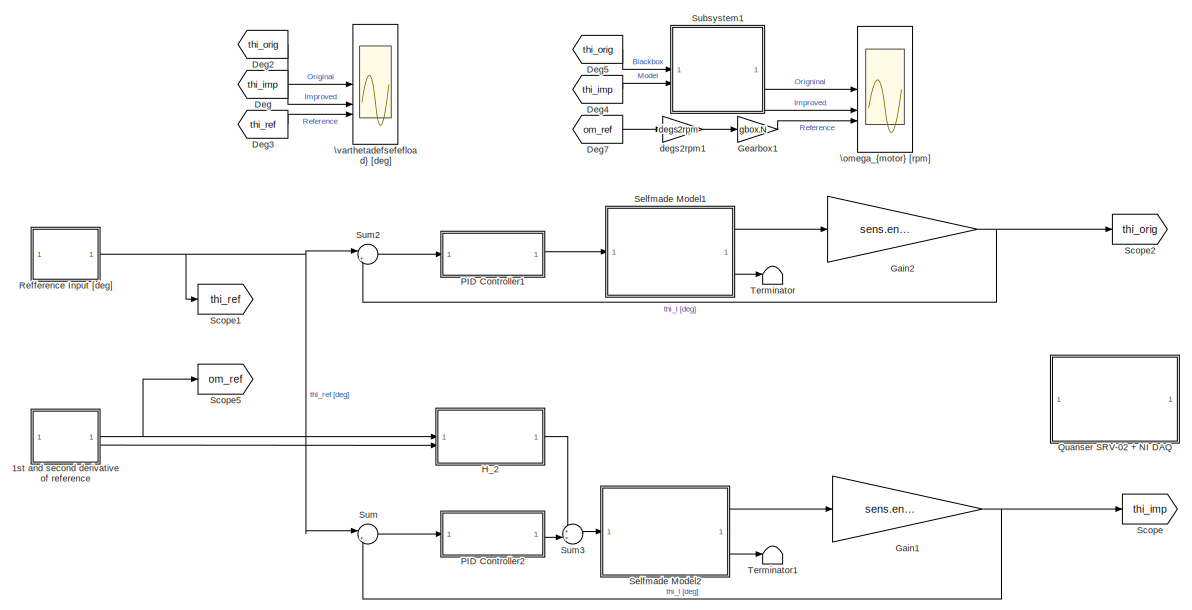
[diagram: root canvas - part 1/2, top right region]
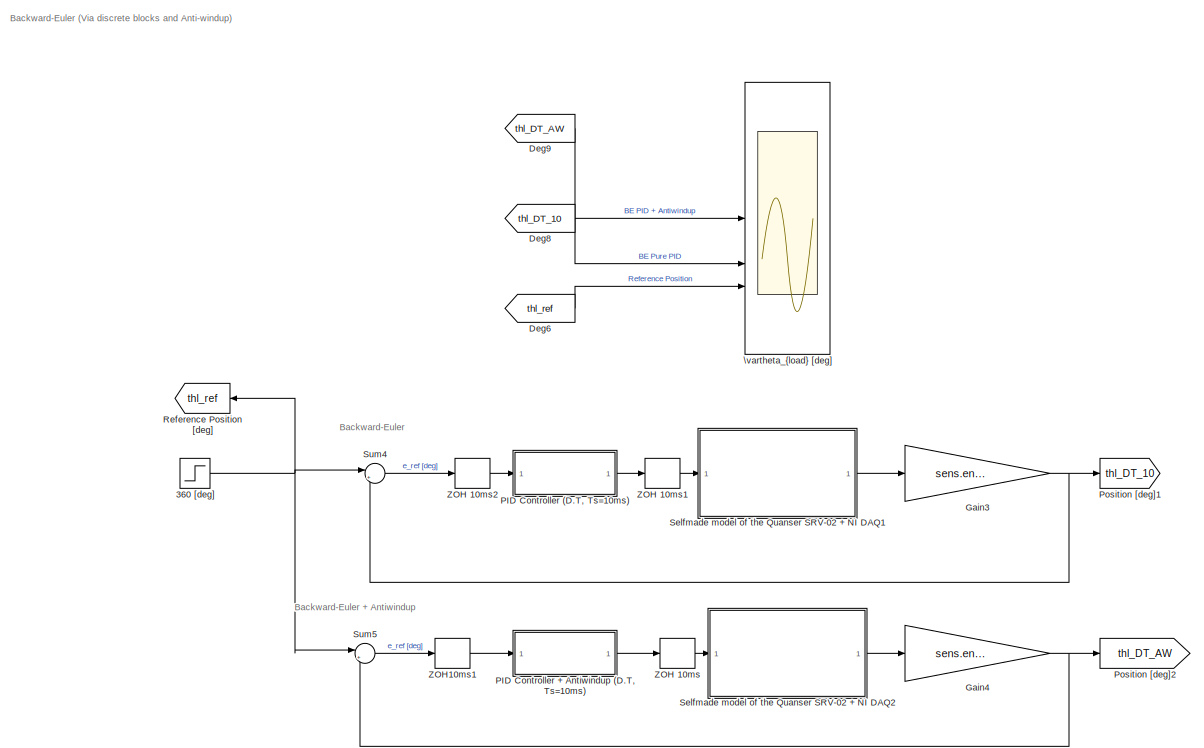
[diagram: root canvas - part 2/2, bottom left region]
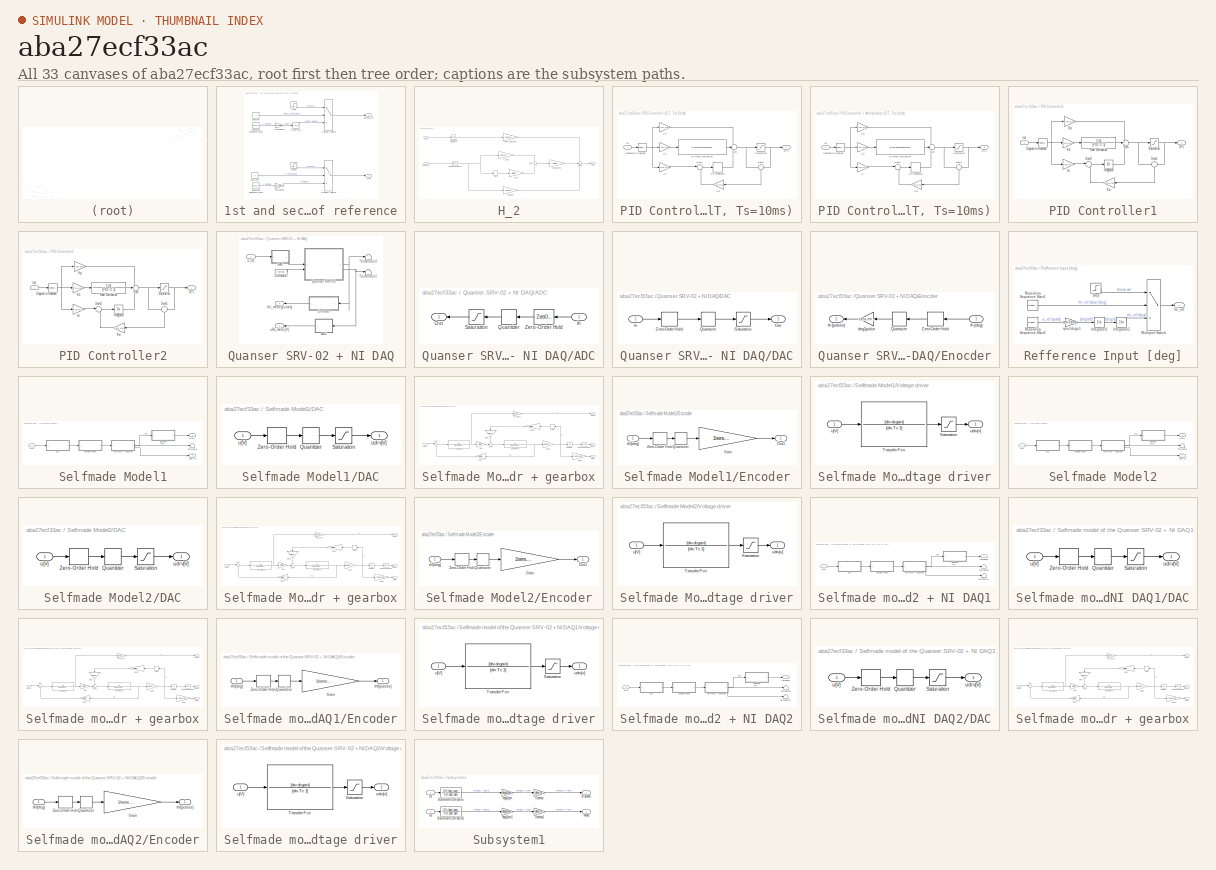
[diagram: thumbnail index - all 33 canvases of the model, root first then tree order]
MODEL slx_aba27ecf33ac
KIND model
CONFIG AbsTol = auto
CONFIG EnableMultiTasking = off
CONFIG FixedStep = 1e-4
CONFIG MaxStep = auto
CONFIG MinStep = auto
CONFIG RelTol = auto
CONFIG SampleTimeConstraint = Unconstrained
CONFIG SolverName = FixedStepAuto
CONFIG StartTime = 0.0
CONFIG StopTime = sIn.simulation_time
BLOCK [SubSystem] 1st and second derivative of reference
  Commented = on
BLOCK [Constant] 1st and second derivative of reference/Constant
  Value = 0
BLOCK [Constant] 1st and second derivative of reference/Constant1
  Value = 0
BLOCK [Integrator] 1st and second derivative of reference/Integrator1
BLOCK [MultiPortSwitch] 1st and second derivative of reference/Multiport Switch
  InputSameDT = off
  Inputs = 2
  SaturateOnIntegerOverflow = off
BLOCK [MultiPortSwitch] 1st and second derivative of reference/Multiport Switch1
  InputSameDT = off
  Inputs = 2
  SaturateOnIntegerOverflow = off
BLOCK [Reference] 1st and second derivative of reference/Repeating Sequence Stair2  REF=simulink/Sources/Repeating
Sequence
Stair
  SourceBlock = simulink/Sources/Repeating\nSequence\nStair
  SourceType = Repeating Sequence Stair
BLOCK [Reference] 1st and second derivative of reference/Repeating Sequence Stair4  REF=simulink/Sources/Repeating
Sequence
Stair
  SourceBlock = simulink/Sources/Repeating\nSequence\nStair
  SourceType = Repeating Sequence Stair
BLOCK [Step] 1st and second derivative of reference/Step
  After = sIn.program
  SampleTime = 0
  Time = 0
BLOCK [Step] 1st and second derivative of reference/Step1
  After = sIn.program
  SampleTime = 0
  Time = 0
BLOCK [Outport] 1st and second derivative of reference/a_ref
  Port = 2
BLOCK [Outport] 1st and second derivative of reference/omega_ref
BLOCK [Gain] 1st and second derivative of reference/rpm2degs1
  Gain = rpm2degs
BLOCK [Gain] 1st and second derivative of reference/rpm2degs2
  Gain = rpm2degs
BLOCK [Step] 360 [deg]
  After = 360
  SampleTime = 0
  Time = 0
BLOCK [From] Deg
  Commented = on
  GotoTag = thi_imp
BLOCK [From] Deg2
  Commented = on
  GotoTag = thi_orig
BLOCK [From] Deg3
  Commented = on
  GotoTag = thi_ref
BLOCK [From] Deg4
  Commented = on
  GotoTag = thi_imp
BLOCK [From] Deg5
  Commented = on
  GotoTag = thi_orig
BLOCK [From] Deg6
  GotoTag = thl_ref
BLOCK [From] Deg7
  Commented = on
  GotoTag = om_ref
BLOCK [From] Deg8
  GotoTag = thl_DT_10
BLOCK [From] Deg9
  GotoTag = thl_DT_AW
BLOCK [Gain] Gain1
  Commented = on
  Gain = sens.enc.pulse2deg
  NameLocation = top
BLOCK [Gain] Gain2
  Commented = on
  Gain = sens.enc.pulse2deg
BLOCK [Gain] Gain3
  Gain = sens.enc.pulse2deg
BLOCK [Gain] Gain4
  Gain = sens.enc.pulse2deg
BLOCK [Gain] Gearbox1
  Commented = on
  Gain = gbox.N
BLOCK [SubSystem] H_2
  Commented = on
BLOCK [Gain] H_2/(N Ke)//Kdrv
  Gain = (gbox.N*mot.Ke)/(drv.dcgain)
BLOCK [Gain] H_2/(N Req Jeq)//(Kdrv Kt)
  Gain = (gbox.N*mot.Req*mld.Jeq)/(drv.dcgain*mot.Kt)
BLOCK [Reference] H_2/Degrees to Radians  REF=simulink_extras/Transformations/Degrees to
Radians
  SourceBlock = simulink_extras/Transformations/Degrees to\nRadians
  SourceType = DegreesToRadians
BLOCK [Reference] H_2/Degrees to Radians1  REF=simulink_extras/Transformations/Degrees to
Radians
  SourceBlock = simulink_extras/Transformations/Degrees to\nRadians
  SourceType = DegreesToRadians
BLOCK [Gain] H_2/N^2 Beq
  Gain = gbox.N^2 * mld.Beq
BLOCK [Gain] H_2/Req//(Kdrv Kt N)
  Gain = (mot.Req)/(drv.dcgain*mot.Kt*gbox.N)
BLOCK [Signum] H_2/Sign
  ZeroCross = off
BLOCK [Sum] H_2/Sum
  Inputs = +|+
BLOCK [Sum] H_2/Sum1
  Inputs = +++
BLOCK [Inport] H_2/a_ref
  Port = 2
BLOCK [Inport] H_2/omega_ref
BLOCK [Gain] H_2/tausf
  Gain = mld.tausf
BLOCK [Outport] H_2/u_ff
BLOCK [SubSystem] PID Controller (D.T, Ts=10ms)
BLOCK [DiscreteIntegrator] PID Controller (D.T, Ts=10ms)/DT Integrator
  ICPrevOutput = DiscIntNeverNeededParam
  ICPrevScaledInput = DiscIntNeverNeededParam
  InitialConditionSetting = Auto
  IntegratorMethod = Integration: Backward Euler
  SampleTime = specs.Ts(2)
BLOCK [DiscreteTransferFcn] PID Controller (D.T, Ts=10ms)/DT Real Derivative
  Denominator = [(PID.Tl + specs.Ts(2))  -PID.Tl]
  InputPortMap = u0
  Numerator = [1 -1]
BLOCK [Reference] PID Controller (D.T, Ts=10ms)/Degrees to Radians  REF=simulink_extras/Transformations/Degrees to
Radians
  SourceBlock = simulink_extras/Transformations/Degrees to\nRadians
  SourceType = DegreesToRadians
BLOCK [Inport] PID Controller (D.T, Ts=10ms)/In1
BLOCK [Gain] PID Controller (D.T, Ts=10ms)/Kd
  Gain = PID.Kd
BLOCK [Gain] PID Controller (D.T, Ts=10ms)/Ki
  Gain = PID.Ki
BLOCK [Gain] PID Controller (D.T, Ts=10ms)/Kp
  Gain = PID.Kp
BLOCK [Gain] PID Controller (D.T, Ts=10ms)/Kw
  Commented = on
  Gain = PID.Kw
BLOCK [Saturate] PID Controller (D.T, Ts=10ms)/Saturation
  LowerLimit = -10
  UpperLimit = 10
BLOCK [Sum] PID Controller (D.T, Ts=10ms)/Sum
  Inputs = +++
BLOCK [Sum] PID Controller (D.T, Ts=10ms)/Sum1
  Inputs = +|-
  NameLocation = left
BLOCK [Sum] PID Controller (D.T, Ts=10ms)/Sum2
  Inputs = |+-
BLOCK [Outport] PID Controller (D.T, Ts=10ms)/u[V]
BLOCK [SubSystem] PID Controller + Antiwindup (D.T, Ts=10ms)
BLOCK [DiscreteIntegrator] PID Controller + Antiwindup (D.T, Ts=10ms)/DT Integrator
  ICPrevOutput = DiscIntNeverNeededParam
  ICPrevScaledInput = DiscIntNeverNeededParam
  InitialConditionSetting = Auto
  IntegratorMethod = Integration: Backward Euler
  SampleTime = specs.Ts(2)
BLOCK [DiscreteTransferFcn] PID Controller + Antiwindup (D.T, Ts=10ms)/DT Real Derivative
  Denominator = [(PID.Tl + specs.Ts(2))  -PID.Tl]
  InputPortMap = u0
  Numerator = [1 -1]
BLOCK [Reference] PID Controller + Antiwindup (D.T, Ts=10ms)/Degrees to Radians  REF=simulink_extras/Transformations/Degrees to
Radians
  SourceBlock = simulink_extras/Transformations/Degrees to\nRadians
  SourceType = DegreesToRadians
BLOCK [Inport] PID Controller + Antiwindup (D.T, Ts=10ms)/In1
BLOCK [Gain] PID Controller + Antiwindup (D.T, Ts=10ms)/Kd
  Gain = PID.Kd
BLOCK [Gain] PID Controller + Antiwindup (D.T, Ts=10ms)/Ki
  Gain = PID.Ki
BLOCK [Gain] PID Controller + Antiwindup (D.T, Ts=10ms)/Kp
  Gain = PID.Kp
BLOCK [Gain] PID Controller + Antiwindup (D.T, Ts=10ms)/Kw
  Gain = PID.Kw
BLOCK [Saturate] PID Controller + Antiwindup (D.T, Ts=10ms)/Saturation
  LowerLimit = -10
  UpperLimit = 10
BLOCK [Sum] PID Controller + Antiwindup (D.T, Ts=10ms)/Sum
  Inputs = +++
BLOCK [Sum] PID Controller + Antiwindup (D.T, Ts=10ms)/Sum1
  Inputs = +|-
  NameLocation = left
BLOCK [Sum] PID Controller + Antiwindup (D.T, Ts=10ms)/Sum2
  Inputs = |+-
BLOCK [Outport] PID Controller + Antiwindup (D.T, Ts=10ms)/u[V]
BLOCK [SubSystem] PID Controller1
  Commented = on
BLOCK [Reference] PID Controller1/Degrees to Radians  REF=simulink_extras/Transformations/Degrees to
Radians
  SourceBlock = simulink_extras/Transformations/Degrees to\nRadians
  SourceType = DegreesToRadians
BLOCK [Inport] PID Controller1/In1
BLOCK [Integrator] PID Controller1/Integrator
BLOCK [Gain] PID Controller1/Kd
  Gain = PID.Kd
BLOCK [Gain] PID Controller1/Ki
  Gain = PID.Ki
BLOCK [Gain] PID Controller1/Kp
  Gain = PID.Kp
BLOCK [Gain] PID Controller1/Kw
  Gain = PID.Kw
BLOCK [TransferFcn] PID Controller1/Real Derivative
  Denominator = [PID.Tl 1]
  Numerator = [1 0]
BLOCK [Saturate] PID Controller1/Saturation
  LowerLimit = -10
  UpperLimit = 10
BLOCK [Sum] PID Controller1/Sum
  Inputs = +++
BLOCK [Sum] PID Controller1/Sum1
  Inputs = +|-
  NameLocation = left
BLOCK [Sum] PID Controller1/Sum2
  Inputs = |+-
BLOCK [Outport] PID Controller1/u[V]
BLOCK [SubSystem] PID Controller2
  Commented = on
BLOCK [Reference] PID Controller2/Degrees to Radians  REF=simulink_extras/Transformations/Degrees to
Radians
  SourceBlock = simulink_extras/Transformations/Degrees to\nRadians
  SourceType = DegreesToRadians
BLOCK [Inport] PID Controller2/In1
BLOCK [Integrator] PID Controller2/Integrator
BLOCK [Gain] PID Controller2/Kd
  Gain = PID.Kd
BLOCK [Gain] PID Controller2/Ki
  Gain = PID.Ki
BLOCK [Gain] PID Controller2/Kp
  Gain = PID.Kp
BLOCK [Gain] PID Controller2/Kw
  Gain = PID.Kw
BLOCK [TransferFcn] PID Controller2/Real Derivative
  Denominator = [PID.Tl 1]
  Numerator = [1 0]
BLOCK [Saturate] PID Controller2/Saturation
  LowerLimit = -10
  UpperLimit = 10
BLOCK [Sum] PID Controller2/Sum
  Inputs = +++
BLOCK [Sum] PID Controller2/Sum1
  Inputs = +|-
  NameLocation = left
BLOCK [Sum] PID Controller2/Sum2
  Inputs = |+-
BLOCK [Outport] PID Controller2/u[V]
BLOCK [Goto] Position [deg]1
  GotoTag = thl_DT_10
BLOCK [Goto] Position [deg]2
  GotoTag = thl_DT_AW
BLOCK [SubSystem] Quanser SRV-02 + NI DAQ
  Commented = on
BLOCK [SubSystem] Quanser SRV-02 + NI DAQ/ADC
BLOCK [Inport] Quanser SRV-02 + NI DAQ/ADC/In
BLOCK [Outport] Quanser SRV-02 + NI DAQ/ADC/Out
BLOCK [Quantizer] Quanser SRV-02 + NI DAQ/ADC/Quantizer
  QuantizationInterval = daq.adc.q
BLOCK [Saturate] Quanser SRV-02 + NI DAQ/ADC/Saturation
  LowerLimit = -daq.adc.fs
  UpperLimit = daq.adc.fs
BLOCK [ZeroOrderHold] Quanser SRV-02 + NI DAQ/ADC/Zero-Order Hold
  SampleTime = Ts
BLOCK [Constant] Quanser SRV-02 + NI DAQ/Constant
  Value = fricType
BLOCK [SubSystem] Quanser SRV-02 + NI DAQ/DAC
BLOCK [Inport] Quanser SRV-02 + NI DAQ/DAC/In
BLOCK [Outport] Quanser SRV-02 + NI DAQ/DAC/Out
BLOCK [Quantizer] Quanser SRV-02 + NI DAQ/DAC/Quantizer
  QuantizationInterval = daq.dac.q
BLOCK [Saturate] Quanser SRV-02 + NI DAQ/DAC/Saturation
  LowerLimit = -daq.dac.fs
  UpperLimit = daq.dac.fs
BLOCK [ZeroOrderHold] Quanser SRV-02 + NI DAQ/DAC/Zero-Order Hold
  SampleTime = Ts
BLOCK [SubSystem] Quanser SRV-02 + NI DAQ/Enocder
BLOCK [Quantizer] Quanser SRV-02 + NI DAQ/Enocder/Quantizer
  QuantizationInterval = sens.enc.pulse2deg
BLOCK [ZeroOrderHold] Quanser SRV-02 + NI DAQ/Enocder/Zero-Order Hold
  SampleTime = Ts
BLOCK [Gain] Quanser SRV-02 + NI DAQ/Enocder/deg2pulse
  Gain = sens.enc.deg2pulse
BLOCK [Inport] Quanser SRV-02 + NI DAQ/Enocder/th [deg]
BLOCK [Outport] Quanser SRV-02 + NI DAQ/Enocder/th [pulses]
BLOCK [ModelReference] Quanser SRV-02 + NI DAQ/Quanser SRV-02
  CopyOfModelProtected = on
  ModelNameDialog = SRV02IL_win64.slxp
  ModelReferenceVersion = 1.44
BLOCK [Terminator] Quanser SRV-02 + NI DAQ/Terminator1
BLOCK [Terminator] Quanser SRV-02 + NI DAQ/Terminator2
BLOCK [Outport] Quanser SRV-02 + NI DAQ/thl_meas [pulses]
BLOCK [Inport] Quanser SRV-02 + NI DAQ/u [V]
BLOCK [Outport] Quanser SRV-02 + NI DAQ/uRs_meas [V]
  Port = 2
BLOCK [Goto] Reference Position [deg]
  GotoTag = thl_ref
  NameLocation = top
BLOCK [SubSystem] Refference Input [deg]
  Commented = on
BLOCK [Integrator] Refference Input [deg]/Integrator1
BLOCK [Integrator] Refference Input [deg]/Integrator2
BLOCK [MultiPortSwitch] Refference Input [deg]/Multiport Switch
  InputSameDT = off
  Inputs = 2
  SaturateOnIntegerOverflow = off
BLOCK [Reference] Refference Input [deg]/Repeating Sequence Stair1  REF=simulink/Sources/Repeating
Sequence
Stair
  SourceBlock = simulink/Sources/Repeating\nSequence\nStair
  SourceType = Repeating Sequence Stair
BLOCK [Reference] Refference Input [deg]/Repeating Sequence Stair2  REF=simulink/Sources/Repeating
Sequence
Stair
  SourceBlock = simulink/Sources/Repeating\nSequence\nStair
  SourceType = Repeating Sequence Stair
BLOCK [Step] Refference Input [deg]/Step
  After = sIn.program
  SampleTime = 0
  Time = 0
BLOCK [Gain] Refference Input [deg]/rpm2degs1
  Gain = rpm2degs
BLOCK [Outport] Refference Input [deg]/thi_ref
BLOCK [Goto] Scope
  Commented = on
  GotoTag = thi_imp
BLOCK [Goto] Scope1
  Commented = on
  GotoTag = thi_ref
BLOCK [Goto] Scope2
  Commented = on
  GotoTag = thi_orig
BLOCK [Goto] Scope5
  Commented = on
  GotoTag = om_ref
BLOCK [SubSystem] Selfmade Model1
  Commented = on
BLOCK [SubSystem] Selfmade Model1/DAC
BLOCK [Quantizer] Selfmade Model1/DAC/Quantizer
  QuantizationInterval = daq.dac.q
BLOCK [Saturate] Selfmade Model1/DAC/Saturation
  LowerLimit = -10
  UpperLimit = 10
BLOCK [ZeroOrderHold] Selfmade Model1/DAC/Zero-Order Hold
  SampleTime = 1e-3
BLOCK [Inport] Selfmade Model1/DAC/u[V]
BLOCK [Outport] Selfmade Model1/DAC/udrv[V]
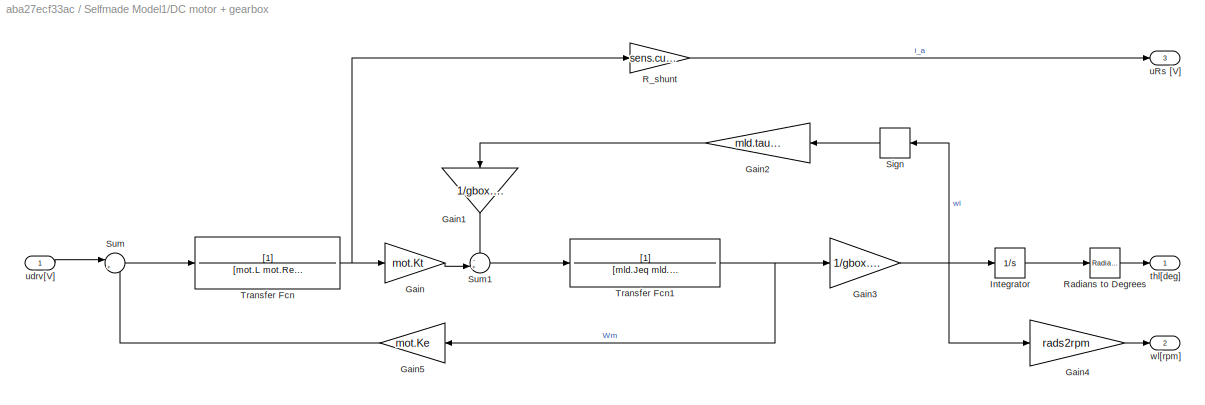
BLOCK [SubSystem] Selfmade Model1/DC motor + gearbox
BLOCK [Gain] Selfmade Model1/DC motor + gearbox/Gain
  Gain = mot.Kt
BLOCK [Gain] Selfmade Model1/DC motor + gearbox/Gain1
  Gain = 1/gbox.N1
  NameLocation = left
BLOCK [Gain] Selfmade Model1/DC motor + gearbox/Gain2
  Gain = mld.tausf
  NameLocation = top
BLOCK [Gain] Selfmade Model1/DC motor + gearbox/Gain3
  Gain = 1/gbox.N1
BLOCK [Gain] Selfmade Model1/DC motor + gearbox/Gain4
  Gain = rads2rpm
BLOCK [Gain] Selfmade Model1/DC motor + gearbox/Gain5
  Gain = mot.Ke
  NameLocation = top
BLOCK [Integrator] Selfmade Model1/DC motor + gearbox/Integrator
BLOCK [Gain] Selfmade Model1/DC motor + gearbox/R_shunt
  Gain = sens.curr.Rs
BLOCK [Reference] Selfmade Model1/DC motor + gearbox/Radians to Degrees  REF=simulink_extras/Transformations/Radians
to Degrees
  SourceBlock = simulink_extras/Transformations/Radians\nto Degrees
  SourceType = RadiansToDegrees
BLOCK [Signum] Selfmade Model1/DC motor + gearbox/Sign
  NameLocation = top
  ZeroCross = off
BLOCK [Sum] Selfmade Model1/DC motor + gearbox/Sum
  Inputs = |+-
BLOCK [Sum] Selfmade Model1/DC motor + gearbox/Sum1
  Inputs = -+|
BLOCK [TransferFcn] Selfmade Model1/DC motor + gearbox/Transfer Fcn
  Denominator = [mot.L mot.Req]
BLOCK [TransferFcn] Selfmade Model1/DC motor + gearbox/Transfer Fcn1
  Denominator = [mld.Jeq mld.Beq]
BLOCK [Outport] Selfmade Model1/DC motor + gearbox/thl[deg]
BLOCK [Outport] Selfmade Model1/DC motor + gearbox/uRs [V]
  Port = 3
BLOCK [Inport] Selfmade Model1/DC motor + gearbox/udrv[V]
BLOCK [Outport] Selfmade Model1/DC motor + gearbox/wl[rpm]
  Port = 2
BLOCK [SubSystem] Selfmade Model1/Encoder
  NameLocation = top
BLOCK [Gain] Selfmade Model1/Encoder/Gain
  Gain = 1/sens.enc.pulse2deg
BLOCK [Outport] Selfmade Model1/Encoder/Out1
BLOCK [Quantizer] Selfmade Model1/Encoder/Quantizer
  QuantizationInterval = sens.enc.pulse2deg
BLOCK [ZeroOrderHold] Selfmade Model1/Encoder/Zero-Order Hold
  SampleTime = 1e-3
BLOCK [Inport] Selfmade Model1/Encoder/thl[deg]
BLOCK [Outport] Selfmade Model1/Out1
BLOCK [Terminator] Selfmade Model1/Terminator
BLOCK [SubSystem] Selfmade Model1/Voltage driver
BLOCK [Saturate] Selfmade Model1/Voltage driver/Saturation
  LowerLimit = -12
  UpperLimit = 12
BLOCK [TransferFcn] Selfmade Model1/Voltage driver/Transfer Fcn
  Denominator = [drv.Tc 1]
  Numerator = [drv.dcgain]
BLOCK [Inport] Selfmade Model1/Voltage driver/u[V]
BLOCK [Outport] Selfmade Model1/Voltage driver/udrv[v]
BLOCK [Outport] Selfmade Model1/uRs [V]
  Port = 2
BLOCK [Inport] Selfmade Model1/u[V]
BLOCK [SubSystem] Selfmade Model2
  Commented = on
BLOCK [SubSystem] Selfmade Model2/DAC
BLOCK [Quantizer] Selfmade Model2/DAC/Quantizer
  QuantizationInterval = daq.dac.q
BLOCK [Saturate] Selfmade Model2/DAC/Saturation
  LowerLimit = -10
  UpperLimit = 10
BLOCK [ZeroOrderHold] Selfmade Model2/DAC/Zero-Order Hold
  SampleTime = 1e-3
BLOCK [Inport] Selfmade Model2/DAC/u[V]
BLOCK [Outport] Selfmade Model2/DAC/udrv[V]
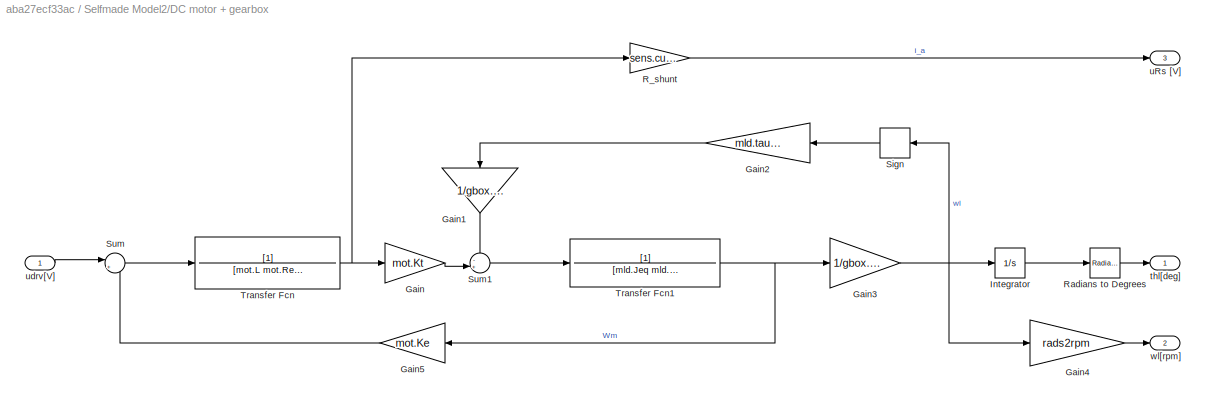
BLOCK [SubSystem] Selfmade Model2/DC motor + gearbox
BLOCK [Gain] Selfmade Model2/DC motor + gearbox/Gain
  Gain = mot.Kt
BLOCK [Gain] Selfmade Model2/DC motor + gearbox/Gain1
  Gain = 1/gbox.N1
  NameLocation = left
BLOCK [Gain] Selfmade Model2/DC motor + gearbox/Gain2
  Gain = mld.tausf
  NameLocation = top
BLOCK [Gain] Selfmade Model2/DC motor + gearbox/Gain3
  Gain = 1/gbox.N1
BLOCK [Gain] Selfmade Model2/DC motor + gearbox/Gain4
  Gain = rads2rpm
BLOCK [Gain] Selfmade Model2/DC motor + gearbox/Gain5
  Gain = mot.Ke
  NameLocation = top
BLOCK [Integrator] Selfmade Model2/DC motor + gearbox/Integrator
BLOCK [Gain] Selfmade Model2/DC motor + gearbox/R_shunt
  Gain = sens.curr.Rs
BLOCK [Reference] Selfmade Model2/DC motor + gearbox/Radians to Degrees  REF=simulink_extras/Transformations/Radians
to Degrees
  SourceBlock = simulink_extras/Transformations/Radians\nto Degrees
  SourceType = RadiansToDegrees
BLOCK [Signum] Selfmade Model2/DC motor + gearbox/Sign
  NameLocation = top
  ZeroCross = off
BLOCK [Sum] Selfmade Model2/DC motor + gearbox/Sum
  Inputs = |+-
BLOCK [Sum] Selfmade Model2/DC motor + gearbox/Sum1
  Inputs = -+|
BLOCK [TransferFcn] Selfmade Model2/DC motor + gearbox/Transfer Fcn
  Denominator = [mot.L mot.Req]
BLOCK [TransferFcn] Selfmade Model2/DC motor + gearbox/Transfer Fcn1
  Denominator = [mld.Jeq mld.Beq]
BLOCK [Outport] Selfmade Model2/DC motor + gearbox/thl[deg]
BLOCK [Outport] Selfmade Model2/DC motor + gearbox/uRs [V]
  Port = 3
BLOCK [Inport] Selfmade Model2/DC motor + gearbox/udrv[V]
BLOCK [Outport] Selfmade Model2/DC motor + gearbox/wl[rpm]
  Port = 2
BLOCK [SubSystem] Selfmade Model2/Encoder
  NameLocation = top
BLOCK [Gain] Selfmade Model2/Encoder/Gain
  Gain = 1/sens.enc.pulse2deg
BLOCK [Outport] Selfmade Model2/Encoder/Out1
BLOCK [Quantizer] Selfmade Model2/Encoder/Quantizer
  QuantizationInterval = sens.enc.pulse2deg
BLOCK [ZeroOrderHold] Selfmade Model2/Encoder/Zero-Order Hold
  SampleTime = 1e-3
BLOCK [Inport] Selfmade Model2/Encoder/thl[deg]
BLOCK [Outport] Selfmade Model2/Out1
BLOCK [Terminator] Selfmade Model2/Terminator
BLOCK [SubSystem] Selfmade Model2/Voltage driver
BLOCK [Saturate] Selfmade Model2/Voltage driver/Saturation
  LowerLimit = -12
  UpperLimit = 12
BLOCK [TransferFcn] Selfmade Model2/Voltage driver/Transfer Fcn
  Denominator = [drv.Tc 1]
  Numerator = [drv.dcgain]
BLOCK [Inport] Selfmade Model2/Voltage driver/u[V]
BLOCK [Outport] Selfmade Model2/Voltage driver/udrv[v]
BLOCK [Outport] Selfmade Model2/uRs [V]
  Port = 2
BLOCK [Inport] Selfmade Model2/u[V]
BLOCK [SubSystem] Selfmade model of the Quanser SRV-02 + NI DAQ1
BLOCK [SubSystem] Selfmade model of the Quanser SRV-02 + NI DAQ1/DAC
BLOCK [Quantizer] Selfmade model of the Quanser SRV-02 + NI DAQ1/DAC/Quantizer
  QuantizationInterval = daq.dac.q
BLOCK [Saturate] Selfmade model of the Quanser SRV-02 + NI DAQ1/DAC/Saturation
  LowerLimit = -10
  UpperLimit = 10
BLOCK [ZeroOrderHold] Selfmade model of the Quanser SRV-02 + NI DAQ1/DAC/Zero-Order Hold
  SampleTime = 1e-3
BLOCK [Inport] Selfmade model of the Quanser SRV-02 + NI DAQ1/DAC/u[V]
BLOCK [Outport] Selfmade model of the Quanser SRV-02 + NI DAQ1/DAC/udrv[V]
BLOCK [SubSystem] Selfmade model of the Quanser SRV-02 + NI DAQ1/DC motor + gearbox
BLOCK [Gain] Selfmade model of the Quanser SRV-02 + NI DAQ1/DC motor + gearbox/Gain
  Gain = mot.Kt
BLOCK [Gain] Selfmade model of the Quanser SRV-02 + NI DAQ1/DC motor + gearbox/Gain1
  Gain = 1/gbox.N1
  NameLocation = left
BLOCK [Gain] Selfmade model of the Quanser SRV-02 + NI DAQ1/DC motor + gearbox/Gain2
  Gain = mld.tausf
  NameLocation = top
BLOCK [Gain] Selfmade model of the Quanser SRV-02 + NI DAQ1/DC motor + gearbox/Gain3
  Gain = 1/gbox.N1
BLOCK [Gain] Selfmade model of the Quanser SRV-02 + NI DAQ1/DC motor + gearbox/Gain4
  Gain = rads2rpm
BLOCK [Gain] Selfmade model of the Quanser SRV-02 + NI DAQ1/DC motor + gearbox/Gain5
  Gain = mot.Ke
  NameLocation = top
BLOCK [Integrator] Selfmade model of the Quanser SRV-02 + NI DAQ1/DC motor + gearbox/Integrator
BLOCK [Gain] Selfmade model of the Quanser SRV-02 + NI DAQ1/DC motor + gearbox/R_shunt
  Gain = sens.curr.Rs
BLOCK [Reference] Selfmade model of the Quanser SRV-02 + NI DAQ1/DC motor + gearbox/Radians to Degrees  REF=simulink_extras/Transformations/Radians
to Degrees
  SourceBlock = simulink_extras/Transformations/Radians\nto Degrees
  SourceType = RadiansToDegrees
BLOCK [Signum] Selfmade model of the Quanser SRV-02 + NI DAQ1/DC motor + gearbox/Sign
  NameLocation = top
  ZeroCross = off
BLOCK [Sum] Selfmade model of the Quanser SRV-02 + NI DAQ1/DC motor + gearbox/Sum
  Inputs = |+-
BLOCK [Sum] Selfmade model of the Quanser SRV-02 + NI DAQ1/DC motor + gearbox/Sum1
  Inputs = -+|
BLOCK [TransferFcn] Selfmade model of the Quanser SRV-02 + NI DAQ1/DC motor + gearbox/Transfer Fcn
  Denominator = [mot.L mot.Req]
BLOCK [TransferFcn] Selfmade model of the Quanser SRV-02 + NI DAQ1/DC motor + gearbox/Transfer Fcn1
  Denominator = [mld.Jeq mld.Beq]
BLOCK [Outport] Selfmade model of the Quanser SRV-02 + NI DAQ1/DC motor + gearbox/thl[deg]
BLOCK [Outport] Selfmade model of the Quanser SRV-02 + NI DAQ1/DC motor + gearbox/uRs [V]
  Port = 3
BLOCK [Inport] Selfmade model of the Quanser SRV-02 + NI DAQ1/DC motor + gearbox/udrv[V]
BLOCK [Outport] Selfmade model of the Quanser SRV-02 + NI DAQ1/DC motor + gearbox/wl[rpm]
  Port = 2
BLOCK [SubSystem] Selfmade model of the Quanser SRV-02 + NI DAQ1/Encoder
  NameLocation = top
BLOCK [Gain] Selfmade model of the Quanser SRV-02 + NI DAQ1/Encoder/Gain
  Gain = 1/sens.enc.pulse2deg
BLOCK [Quantizer] Selfmade model of the Quanser SRV-02 + NI DAQ1/Encoder/Quantizer
  QuantizationInterval = sens.enc.pulse2deg
BLOCK [ZeroOrderHold] Selfmade model of the Quanser SRV-02 + NI DAQ1/Encoder/Zero-Order Hold
  SampleTime = 1e-3
BLOCK [Inport] Selfmade model of the Quanser SRV-02 + NI DAQ1/Encoder/thl[deg]
BLOCK [Outport] Selfmade model of the Quanser SRV-02 + NI DAQ1/Encoder/thl[pulses]
BLOCK [Terminator] Selfmade model of the Quanser SRV-02 + NI DAQ1/Terminator
BLOCK [Terminator] Selfmade model of the Quanser SRV-02 + NI DAQ1/Terminator1
BLOCK [SubSystem] Selfmade model of the Quanser SRV-02 + NI DAQ1/Voltage driver
BLOCK [Saturate] Selfmade model of the Quanser SRV-02 + NI DAQ1/Voltage driver/Saturation
  LowerLimit = -12
  UpperLimit = 12
BLOCK [TransferFcn] Selfmade model of the Quanser SRV-02 + NI DAQ1/Voltage driver/Transfer Fcn
  Denominator = [drv.Tc 1]
  Numerator = [drv.dcgain]
BLOCK [Inport] Selfmade model of the Quanser SRV-02 + NI DAQ1/Voltage driver/u[V]
BLOCK [Outport] Selfmade model of the Quanser SRV-02 + NI DAQ1/Voltage driver/udrv[v]
BLOCK [Outport] Selfmade model of the Quanser SRV-02 + NI DAQ1/thl[pulses]
BLOCK [Inport] Selfmade model of the Quanser SRV-02 + NI DAQ1/u[V]
BLOCK [SubSystem] Selfmade model of the Quanser SRV-02 + NI DAQ2
BLOCK [SubSystem] Selfmade model of the Quanser SRV-02 + NI DAQ2/DAC
BLOCK [Quantizer] Selfmade model of the Quanser SRV-02 + NI DAQ2/DAC/Quantizer
  QuantizationInterval = daq.dac.q
BLOCK [Saturate] Selfmade model of the Quanser SRV-02 + NI DAQ2/DAC/Saturation
  LowerLimit = -10
  UpperLimit = 10
BLOCK [ZeroOrderHold] Selfmade model of the Quanser SRV-02 + NI DAQ2/DAC/Zero-Order Hold
  SampleTime = 1e-3
BLOCK [Inport] Selfmade model of the Quanser SRV-02 + NI DAQ2/DAC/u[V]
BLOCK [Outport] Selfmade model of the Quanser SRV-02 + NI DAQ2/DAC/udrv[V]
BLOCK [SubSystem] Selfmade model of the Quanser SRV-02 + NI DAQ2/DC motor + gearbox
BLOCK [Gain] Selfmade model of the Quanser SRV-02 + NI DAQ2/DC motor + gearbox/Gain
  Gain = mot.Kt
BLOCK [Gain] Selfmade model of the Quanser SRV-02 + NI DAQ2/DC motor + gearbox/Gain1
  Gain = 1/gbox.N1
  NameLocation = left
BLOCK [Gain] Selfmade model of the Quanser SRV-02 + NI DAQ2/DC motor + gearbox/Gain2
  Gain = mld.tausf
  NameLocation = top
BLOCK [Gain] Selfmade model of the Quanser SRV-02 + NI DAQ2/DC motor + gearbox/Gain3
  Gain = 1/gbox.N1
BLOCK [Gain] Selfmade model of the Quanser SRV-02 + NI DAQ2/DC motor + gearbox/Gain4
  Gain = rads2rpm
BLOCK [Gain] Selfmade model of the Quanser SRV-02 + NI DAQ2/DC motor + gearbox/Gain5
  Gain = mot.Ke
  NameLocation = top
BLOCK [Integrator] Selfmade model of the Quanser SRV-02 + NI DAQ2/DC motor + gearbox/Integrator
BLOCK [Gain] Selfmade model of the Quanser SRV-02 + NI DAQ2/DC motor + gearbox/R_shunt
  Gain = sens.curr.Rs
BLOCK [Reference] Selfmade model of the Quanser SRV-02 + NI DAQ2/DC motor + gearbox/Radians to Degrees  REF=simulink_extras/Transformations/Radians
to Degrees
  SourceBlock = simulink_extras/Transformations/Radians\nto Degrees
  SourceType = RadiansToDegrees
BLOCK [Signum] Selfmade model of the Quanser SRV-02 + NI DAQ2/DC motor + gearbox/Sign
  NameLocation = top
  ZeroCross = off
BLOCK [Sum] Selfmade model of the Quanser SRV-02 + NI DAQ2/DC motor + gearbox/Sum
  Inputs = |+-
BLOCK [Sum] Selfmade model of the Quanser SRV-02 + NI DAQ2/DC motor + gearbox/Sum1
  Inputs = -+|
BLOCK [TransferFcn] Selfmade model of the Quanser SRV-02 + NI DAQ2/DC motor + gearbox/Transfer Fcn
  Denominator = [mot.L mot.Req]
BLOCK [TransferFcn] Selfmade model of the Quanser SRV-02 + NI DAQ2/DC motor + gearbox/Transfer Fcn1
  Denominator = [mld.Jeq mld.Beq]
BLOCK [Outport] Selfmade model of the Quanser SRV-02 + NI DAQ2/DC motor + gearbox/thl[deg]
BLOCK [Outport] Selfmade model of the Quanser SRV-02 + NI DAQ2/DC motor + gearbox/uRs [V]
  Port = 3
BLOCK [Inport] Selfmade model of the Quanser SRV-02 + NI DAQ2/DC motor + gearbox/udrv[V]
BLOCK [Outport] Selfmade model of the Quanser SRV-02 + NI DAQ2/DC motor + gearbox/wl[rpm]
  Port = 2
BLOCK [SubSystem] Selfmade model of the Quanser SRV-02 + NI DAQ2/Encoder
  NameLocation = top
BLOCK [Gain] Selfmade model of the Quanser SRV-02 + NI DAQ2/Encoder/Gain
  Gain = 1/sens.enc.pulse2deg
BLOCK [Quantizer] Selfmade model of the Quanser SRV-02 + NI DAQ2/Encoder/Quantizer
  QuantizationInterval = sens.enc.pulse2deg
BLOCK [ZeroOrderHold] Selfmade model of the Quanser SRV-02 + NI DAQ2/Encoder/Zero-Order Hold
  SampleTime = 1e-3
BLOCK [Inport] Selfmade model of the Quanser SRV-02 + NI DAQ2/Encoder/thl[deg]
BLOCK [Outport] Selfmade model of the Quanser SRV-02 + NI DAQ2/Encoder/thl[pulses]
BLOCK [Terminator] Selfmade model of the Quanser SRV-02 + NI DAQ2/Terminator
BLOCK [Terminator] Selfmade model of the Quanser SRV-02 + NI DAQ2/Terminator1
BLOCK [SubSystem] Selfmade model of the Quanser SRV-02 + NI DAQ2/Voltage driver
BLOCK [Saturate] Selfmade model of the Quanser SRV-02 + NI DAQ2/Voltage driver/Saturation
  LowerLimit = -12
  UpperLimit = 12
BLOCK [TransferFcn] Selfmade model of the Quanser SRV-02 + NI DAQ2/Voltage driver/Transfer Fcn
  Denominator = [drv.Tc 1]
  Numerator = [drv.dcgain]
BLOCK [Inport] Selfmade model of the Quanser SRV-02 + NI DAQ2/Voltage driver/u[V]
BLOCK [Outport] Selfmade model of the Quanser SRV-02 + NI DAQ2/Voltage driver/udrv[v]
BLOCK [Outport] Selfmade model of the Quanser SRV-02 + NI DAQ2/thl[pulses]
BLOCK [Inport] Selfmade model of the Quanser SRV-02 + NI DAQ2/u[V]
BLOCK [SubSystem] Subsystem1
  Commented = on
BLOCK [Outport] Subsystem1/Blackbox
BLOCK [TransferFcn] Subsystem1/Butterworth Derivative
  Denominator = filt.butt.den
  Numerator = filt.butt.num
BLOCK [TransferFcn] Subsystem1/Butterworth Derivative1
  Denominator = filt.butt.den
  Numerator = filt.butt.num
BLOCK [Gain] Subsystem1/Gearbox
  Gain = gbox.N
BLOCK [Gain] Subsystem1/Gearbox1
  Gain = gbox.N
BLOCK [Inport] Subsystem1/In1
BLOCK [Inport] Subsystem1/In2
  Port = 2
BLOCK [Outport] Subsystem1/Model
  Port = 2
BLOCK [Gain] Subsystem1/degs2rpm
  Gain = degs2rpm
BLOCK [Gain] Subsystem1/degs2rpm1
  Gain = degs2rpm
BLOCK [Sum] Sum
  Commented = on
  Inputs = |+-
BLOCK [Sum] Sum2
  Commented = on
  Inputs = |+-
BLOCK [Sum] Sum3
  Commented = on
  Inputs = ++|
BLOCK [Sum] Sum4
  Inputs = |+-
BLOCK [Sum] Sum5
  Inputs = |+-
BLOCK [Terminator] Terminator
  Commented = on
BLOCK [Terminator] Terminator1
  Commented = on
BLOCK [ZeroOrderHold] ZOH 10ms
  SampleTime = specs.Ts(2)
BLOCK [ZeroOrderHold] ZOH 10ms1
  SampleTime = specs.Ts(2)
BLOCK [ZeroOrderHold] ZOH 10ms2
  SampleTime = specs.Ts(2)
BLOCK [ZeroOrderHold] ZOH10ms1
  SampleTime = specs.Ts(2)
BLOCK [Scope] \omega_{motor} [rpm]
  Commented = on
  Floating = off
  NumInputPorts = 3
  ScopeSpecificationString = Simulink.scopes.TimeScopeBlockCfg('CurrentConfiguration', extmgr.ConfigurationSet(extmgr.Configuration('Core','General UI',true),extmgr.Configuration('Core','Source UI',true),extmgr.Configuration('Sources','WiredSimulink',true,'DataLoggingVariableName','ScopeData1','DataLogging',true,'DataLoggingSaveFormat','StructureWithTime'),extmgr.Configuration('Visuals','Time Domain',true,'SerializedDisplays'...<+1715ch>
BLOCK [Scope] \vartheta_{load} [deg]
  Floating = off
  NumInputPorts = 3
  ScopeSpecificationString = Simulink.scopes.TimeScopeBlockCfg('CurrentConfiguration', extmgr.ConfigurationSet(extmgr.Configuration('Core','General UI',true),extmgr.Configuration('Core','Source UI',true),extmgr.Configuration('Sources','WiredSimulink',true,'DataLoggingVariableName','pid_trials','DataLogging',true,'DataLoggingSaveFormat','StructureWithTime'),extmgr.Configuration('Visuals','Time Domain',true,'SerializedDisplays'...<+1742ch>
BLOCK [Scope] \varthetadefsefefload} [deg]
  Commented = on
  Floating = off
  NumInputPorts = 3
  ScopeSpecificationString = Simulink.scopes.TimeScopeBlockCfg('CurrentConfiguration', extmgr.ConfigurationSet(extmgr.Configuration('Core','General UI',true),extmgr.Configuration('Core','Source UI',true),extmgr.Configuration('Sources','WiredSimulink',true,'DataLoggingVariableName','ScopeData2','DataLogging',true,'DataLoggingSaveFormat','StructureWithTime'),extmgr.Configuration('Visuals','Time Domain',true,'SerializedDisplays'...<+1686ch>
BLOCK [Gain] degs2rpm1
  Commented = on
  Gain = degs2rpm
ANNOTATION (root): Backward-Euler (Via discrete blocks and Anti-windup)
ANNOTATION (root): Backward-Euler + Antiwindup
ANNOTATION (root): Backward-Euler
LINE 1st and second derivative of reference/Constant1:1 -> 1st and second derivative of reference/Multiport Switch1:2
LINE 1st and second derivative of reference/Constant:1 -> 1st and second derivative of reference/Multiport Switch:2
LINE 1st and second derivative of reference/Integrator1:1 -> 1st and second derivative of reference/Multiport Switch:3
LINE 1st and second derivative of reference/Multiport Switch1:1 -> 1st and second derivative of reference/a_ref:1
LINE 1st and second derivative of reference/Multiport Switch:1 -> 1st and second derivative of reference/omega_ref:1
LINE 1st and second derivative of reference/Repeating Sequence Stair2:1 -> 1st and second derivative of reference/rpm2degs1:1
LINE 1st and second derivative of reference/Repeating Sequence Stair4:1 -> 1st and second derivative of reference/rpm2degs2:1
LINE 1st and second derivative of reference/Step1:1 -> 1st and second derivative of reference/Multiport Switch1:1
LINE 1st and second derivative of reference/Step:1 -> 1st and second derivative of reference/Multiport Switch:1
LINE 1st and second derivative of reference/rpm2degs1:1 -> 1st and second derivative of reference/Integrator1:1
LINE 1st and second derivative of reference/rpm2degs2:1 -> 1st and second derivative of reference/Multiport Switch1:3
NET 1st and second derivative of reference:1 -> H_2:1, Scope5:1
LINE 1st and second derivative of reference:2 -> H_2:2
NET 360 [deg]:1 -> Reference Position [deg]:1, Sum4:1, Sum5:1
LINE Deg2:1 -> \varthetadefsefefload} [deg]:1
LINE Deg3:1 -> \varthetadefsefefload} [deg]:3
LINE Deg4:1 -> Subsystem1:2
LINE Deg5:1 -> Subsystem1:1
LINE Deg6:1 -> \vartheta_{load} [deg]:3
LINE Deg7:1 -> degs2rpm1:1
LINE Deg8:1 -> \vartheta_{load} [deg]:2
LINE Deg9:1 -> \vartheta_{load} [deg]:1
LINE Deg:1 -> \varthetadefsefefload} [deg]:2
NET Gain1:1 -> Scope:1, Sum:2
NET Gain2:1 -> Scope2:1, Sum2:2
NET Gain3:1 -> Position [deg]1:1, Sum4:2
NET Gain4:1 -> Position [deg]2:1, Sum5:2
LINE Gearbox1:1 -> \omega_{motor} [rpm]:3
LINE H_2/(N Ke)//Kdrv:1 -> H_2/Sum1:3
LINE H_2/(N Req Jeq)//(Kdrv Kt):1 -> H_2/Sum1:1
LINE H_2/Degrees to Radians1:1 -> H_2/(N Req Jeq)//(Kdrv Kt):1
NET H_2/Degrees to Radians:1 -> H_2/(N Ke)//Kdrv:1, H_2/N^2 Beq:1, H_2/Sign:1
LINE H_2/N^2 Beq:1 -> H_2/Sum:1
LINE H_2/Req//(Kdrv Kt N):1 -> H_2/Sum1:2
LINE H_2/Sign:1 -> H_2/tausf:1
LINE H_2/Sum1:1 -> H_2/u_ff:1
LINE H_2/Sum:1 -> H_2/Req//(Kdrv Kt N):1
LINE H_2/a_ref:1 -> H_2/Degrees to Radians1:1
LINE H_2/omega_ref:1 -> H_2/Degrees to Radians:1
LINE H_2/tausf:1 -> H_2/Sum:2
LINE H_2:1 -> Sum3:1
LINE PID Controller (D.T, Ts=10ms)/DT Integrator:1 -> PID Controller (D.T, Ts=10ms)/Sum:3
LINE PID Controller (D.T, Ts=10ms)/DT Real Derivative:1 -> PID Controller (D.T, Ts=10ms)/Sum:2
NET PID Controller (D.T, Ts=10ms)/Degrees to Radians:1 -> PID Controller (D.T, Ts=10ms)/Kd:1, PID Controller (D.T, Ts=10ms)/Ki:1, PID Controller (D.T, Ts=10ms)/Kp:1
LINE PID Controller (D.T, Ts=10ms)/In1:1 -> PID Controller (D.T, Ts=10ms)/Degrees to Radians:1
LINE PID Controller (D.T, Ts=10ms)/Kd:1 -> PID Controller (D.T, Ts=10ms)/DT Real Derivative:1
LINE PID Controller (D.T, Ts=10ms)/Ki:1 -> PID Controller (D.T, Ts=10ms)/Sum2:1
LINE PID Controller (D.T, Ts=10ms)/Kp:1 -> PID Controller (D.T, Ts=10ms)/Sum:1
LINE PID Controller (D.T, Ts=10ms)/Kw:1 -> PID Controller (D.T, Ts=10ms)/Sum2:2
NET PID Controller (D.T, Ts=10ms)/Saturation:1 -> PID Controller (D.T, Ts=10ms)/Sum1:2, PID Controller (D.T, Ts=10ms)/u[V]:1
LINE PID Controller (D.T, Ts=10ms)/Sum1:1 -> PID Controller (D.T, Ts=10ms)/Kw:1
LINE PID Controller (D.T, Ts=10ms)/Sum2:1 -> PID Controller (D.T, Ts=10ms)/DT Integrator:1
NET PID Controller (D.T, Ts=10ms)/Sum:1 -> PID Controller (D.T, Ts=10ms)/Saturation:1, PID Controller (D.T, Ts=10ms)/Sum1:1
LINE PID Controller (D.T, Ts=10ms):1 -> ZOH 10ms1:1
LINE PID Controller + Antiwindup (D.T, Ts=10ms)/DT Integrator:1 -> PID Controller + Antiwindup (D.T, Ts=10ms)/Sum:3
LINE PID Controller + Antiwindup (D.T, Ts=10ms)/DT Real Derivative:1 -> PID Controller + Antiwindup (D.T, Ts=10ms)/Sum:2
NET PID Controller + Antiwindup (D.T, Ts=10ms)/Degrees to Radians:1 -> PID Controller + Antiwindup (D.T, Ts=10ms)/Kd:1, PID Controller + Antiwindup (D.T, Ts=10ms)/Ki:1, PID Controller + Antiwindup (D.T, Ts=10ms)/Kp:1
LINE PID Controller + Antiwindup (D.T, Ts=10ms)/In1:1 -> PID Controller + Antiwindup (D.T, Ts=10ms)/Degrees to Radians:1
LINE PID Controller + Antiwindup (D.T, Ts=10ms)/Kd:1 -> PID Controller + Antiwindup (D.T, Ts=10ms)/DT Real Derivative:1
LINE PID Controller + Antiwindup (D.T, Ts=10ms)/Ki:1 -> PID Controller + Antiwindup (D.T, Ts=10ms)/Sum2:1
LINE PID Controller + Antiwindup (D.T, Ts=10ms)/Kp:1 -> PID Controller + Antiwindup (D.T, Ts=10ms)/Sum:1
LINE PID Controller + Antiwindup (D.T, Ts=10ms)/Kw:1 -> PID Controller + Antiwindup (D.T, Ts=10ms)/Sum2:2
NET PID Controller + Antiwindup (D.T, Ts=10ms)/Saturation:1 -> PID Controller + Antiwindup (D.T, Ts=10ms)/Sum1:2, PID Controller + Antiwindup (D.T, Ts=10ms)/u[V]:1
LINE PID Controller + Antiwindup (D.T, Ts=10ms)/Sum1:1 -> PID Controller + Antiwindup (D.T, Ts=10ms)/Kw:1
LINE PID Controller + Antiwindup (D.T, Ts=10ms)/Sum2:1 -> PID Controller + Antiwindup (D.T, Ts=10ms)/DT Integrator:1
NET PID Controller + Antiwindup (D.T, Ts=10ms)/Sum:1 -> PID Controller + Antiwindup (D.T, Ts=10ms)/Saturation:1, PID Controller + Antiwindup (D.T, Ts=10ms)/Sum1:1
LINE PID Controller + Antiwindup (D.T, Ts=10ms):1 -> ZOH 10ms:1
NET PID Controller1/Degrees to Radians:1 -> PID Controller1/Kd:1, PID Controller1/Ki:1, PID Controller1/Kp:1
LINE PID Controller1/In1:1 -> PID Controller1/Degrees to Radians:1
LINE PID Controller1/Integrator:1 -> PID Controller1/Sum:3
LINE PID Controller1/Kd:1 -> PID Controller1/Real Derivative:1
LINE PID Controller1/Ki:1 -> PID Controller1/Sum2:1
LINE PID Controller1/Kp:1 -> PID Controller1/Sum:1
LINE PID Controller1/Kw:1 -> PID Controller1/Sum2:2
LINE PID Controller1/Real Derivative:1 -> PID Controller1/Sum:2
NET PID Controller1/Saturation:1 -> PID Controller1/Sum1:2, PID Controller1/u[V]:1
LINE PID Controller1/Sum1:1 -> PID Controller1/Kw:1
LINE PID Controller1/Sum2:1 -> PID Controller1/Integrator:1
NET PID Controller1/Sum:1 -> PID Controller1/Saturation:1, PID Controller1/Sum1:1
LINE PID Controller1:1 -> Selfmade Model1:1
NET PID Controller2/Degrees to Radians:1 -> PID Controller2/Kd:1, PID Controller2/Ki:1, PID Controller2/Kp:1
LINE PID Controller2/In1:1 -> PID Controller2/Degrees to Radians:1
LINE PID Controller2/Integrator:1 -> PID Controller2/Sum:3
LINE PID Controller2/Kd:1 -> PID Controller2/Real Derivative:1
LINE PID Controller2/Ki:1 -> PID Controller2/Sum2:1
LINE PID Controller2/Kp:1 -> PID Controller2/Sum:1
LINE PID Controller2/Kw:1 -> PID Controller2/Sum2:2
LINE PID Controller2/Real Derivative:1 -> PID Controller2/Sum:2
NET PID Controller2/Saturation:1 -> PID Controller2/Sum1:2, PID Controller2/u[V]:1
LINE PID Controller2/Sum1:1 -> PID Controller2/Kw:1
LINE PID Controller2/Sum2:1 -> PID Controller2/Integrator:1
NET PID Controller2/Sum:1 -> PID Controller2/Saturation:1, PID Controller2/Sum1:1
LINE PID Controller2:1 -> Sum3:2
LINE Quanser SRV-02 + NI DAQ/ADC/In:1 -> Quanser SRV-02 + NI DAQ/ADC/Zero-Order Hold:1
LINE Quanser SRV-02 + NI DAQ/ADC/Quantizer:1 -> Quanser SRV-02 + NI DAQ/ADC/Saturation:1
LINE Quanser SRV-02 + NI DAQ/ADC/Saturation:1 -> Quanser SRV-02 + NI DAQ/ADC/Out:1
LINE Quanser SRV-02 + NI DAQ/ADC/Zero-Order Hold:1 -> Quanser SRV-02 + NI DAQ/ADC/Quantizer:1
LINE Quanser SRV-02 + NI DAQ/ADC:1 -> Quanser SRV-02 + NI DAQ/uRs_meas [V]:1
LINE Quanser SRV-02 + NI DAQ/Constant:1 -> Quanser SRV-02 + NI DAQ/Quanser SRV-02:2
LINE Quanser SRV-02 + NI DAQ/DAC/In:1 -> Quanser SRV-02 + NI DAQ/DAC/Zero-Order Hold:1
LINE Quanser SRV-02 + NI DAQ/DAC/Quantizer:1 -> Quanser SRV-02 + NI DAQ/DAC/Saturation:1
LINE Quanser SRV-02 + NI DAQ/DAC/Saturation:1 -> Quanser SRV-02 + NI DAQ/DAC/Out:1
LINE Quanser SRV-02 + NI DAQ/DAC/Zero-Order Hold:1 -> Quanser SRV-02 + NI DAQ/DAC/Quantizer:1
LINE Quanser SRV-02 + NI DAQ/DAC:1 -> Quanser SRV-02 + NI DAQ/Quanser SRV-02:1
LINE Quanser SRV-02 + NI DAQ/Enocder/Quantizer:1 -> Quanser SRV-02 + NI DAQ/Enocder/deg2pulse:1
LINE Quanser SRV-02 + NI DAQ/Enocder/Zero-Order Hold:1 -> Quanser SRV-02 + NI DAQ/Enocder/Quantizer:1
LINE Quanser SRV-02 + NI DAQ/Enocder/deg2pulse:1 -> Quanser SRV-02 + NI DAQ/Enocder/th [pulses]:1
LINE Quanser SRV-02 + NI DAQ/Enocder/th [deg]:1 -> Quanser SRV-02 + NI DAQ/Enocder/Zero-Order Hold:1
LINE Quanser SRV-02 + NI DAQ/Enocder:1 -> Quanser SRV-02 + NI DAQ/thl_meas [pulses]:1
NET Quanser SRV-02 + NI DAQ/Quanser SRV-02:1 -> Quanser SRV-02 + NI DAQ/Enocder:1, Quanser SRV-02 + NI DAQ/Terminator2:1
NET Quanser SRV-02 + NI DAQ/Quanser SRV-02:2 -> Quanser SRV-02 + NI DAQ/ADC:1, Quanser SRV-02 + NI DAQ/Terminator1:1
LINE Quanser SRV-02 + NI DAQ/u [V]:1 -> Quanser SRV-02 + NI DAQ/DAC:1
LINE Refference Input [deg]/Integrator1:1 -> Refference Input [deg]/Integrator2:1
LINE Refference Input [deg]/Integrator2:1 -> Refference Input [deg]/Multiport Switch:3
LINE Refference Input [deg]/Multiport Switch:1 -> Refference Input [deg]/thi_ref:1
LINE Refference Input [deg]/Repeating Sequence Stair1:1 -> Refference Input [deg]/Multiport Switch:2
LINE Refference Input [deg]/Repeating Sequence Stair2:1 -> Refference Input [deg]/rpm2degs1:1
LINE Refference Input [deg]/Step:1 -> Refference Input [deg]/Multiport Switch:1
LINE Refference Input [deg]/rpm2degs1:1 -> Refference Input [deg]/Integrator1:1
NET Refference Input [deg]:1 -> Scope1:1, Sum2:1, Sum:1
LINE Selfmade Model1/DAC/Quantizer:1 -> Selfmade Model1/DAC/Saturation:1
LINE Selfmade Model1/DAC/Saturation:1 -> Selfmade Model1/DAC/udrv[V]:1
LINE Selfmade Model1/DAC/Zero-Order Hold:1 -> Selfmade Model1/DAC/Quantizer:1
LINE Selfmade Model1/DAC/u[V]:1 -> Selfmade Model1/DAC/Zero-Order Hold:1
LINE Selfmade Model1/DAC:1 -> Selfmade Model1/Voltage driver:1
LINE Selfmade Model1/DC motor + gearbox/Gain1:1 -> Selfmade Model1/DC motor + gearbox/Sum1:1
LINE Selfmade Model1/DC motor + gearbox/Gain2:1 -> Selfmade Model1/DC motor + gearbox/Gain1:1
NET Selfmade Model1/DC motor + gearbox/Gain3:1 -> Selfmade Model1/DC motor + gearbox/Gain4:1, Selfmade Model1/DC motor + gearbox/Integrator:1, Selfmade Model1/DC motor + gearbox/Sign:1
LINE Selfmade Model1/DC motor + gearbox/Gain4:1 -> Selfmade Model1/DC motor + gearbox/wl[rpm]:1
LINE Selfmade Model1/DC motor + gearbox/Gain5:1 -> Selfmade Model1/DC motor + gearbox/Sum:2
LINE Selfmade Model1/DC motor + gearbox/Gain:1 -> Selfmade Model1/DC motor + gearbox/Sum1:2
LINE Selfmade Model1/DC motor + gearbox/Integrator:1 -> Selfmade Model1/DC motor + gearbox/Radians to Degrees:1
LINE Selfmade Model1/DC motor + gearbox/R_shunt:1 -> Selfmade Model1/DC motor + gearbox/uRs [V]:1
LINE Selfmade Model1/DC motor + gearbox/Radians to Degrees:1 -> Selfmade Model1/DC motor + gearbox/thl[deg]:1
LINE Selfmade Model1/DC motor + gearbox/Sign:1 -> Selfmade Model1/DC motor + gearbox/Gain2:1
LINE Selfmade Model1/DC motor + gearbox/Sum1:1 -> Selfmade Model1/DC motor + gearbox/Transfer Fcn1:1
LINE Selfmade Model1/DC motor + gearbox/Sum:1 -> Selfmade Model1/DC motor + gearbox/Transfer Fcn:1
NET Selfmade Model1/DC motor + gearbox/Transfer Fcn1:1 -> Selfmade Model1/DC motor + gearbox/Gain3:1, Selfmade Model1/DC motor + gearbox/Gain5:1
NET Selfmade Model1/DC motor + gearbox/Transfer Fcn:1 -> Selfmade Model1/DC motor + gearbox/Gain:1, Selfmade Model1/DC motor + gearbox/R_shunt:1
LINE Selfmade Model1/DC motor + gearbox/udrv[V]:1 -> Selfmade Model1/DC motor + gearbox/Sum:1
LINE Selfmade Model1/DC motor + gearbox:1 -> Selfmade Model1/Encoder:1
LINE Selfmade Model1/DC motor + gearbox:2 -> Selfmade Model1/Terminator:1
LINE Selfmade Model1/DC motor + gearbox:3 -> Selfmade Model1/uRs [V]:1
LINE Selfmade Model1/Encoder/Gain:1 -> Selfmade Model1/Encoder/Out1:1
LINE Selfmade Model1/Encoder/Quantizer:1 -> Selfmade Model1/Encoder/Gain:1
LINE Selfmade Model1/Encoder/Zero-Order Hold:1 -> Selfmade Model1/Encoder/Quantizer:1
LINE Selfmade Model1/Encoder/thl[deg]:1 -> Selfmade Model1/Encoder/Zero-Order Hold:1
LINE Selfmade Model1/Encoder:1 -> Selfmade Model1/Out1:1
LINE Selfmade Model1/Voltage driver/Saturation:1 -> Selfmade Model1/Voltage driver/udrv[v]:1
LINE Selfmade Model1/Voltage driver/Transfer Fcn:1 -> Selfmade Model1/Voltage driver/Saturation:1
LINE Selfmade Model1/Voltage driver/u[V]:1 -> Selfmade Model1/Voltage driver/Transfer Fcn:1
LINE Selfmade Model1/Voltage driver:1 -> Selfmade Model1/DC motor + gearbox:1
LINE Selfmade Model1/u[V]:1 -> Selfmade Model1/DAC:1
LINE Selfmade Model1:1 -> Gain2:1
LINE Selfmade Model1:2 -> Terminator:1
LINE Selfmade Model2/DAC/Quantizer:1 -> Selfmade Model2/DAC/Saturation:1
LINE Selfmade Model2/DAC/Saturation:1 -> Selfmade Model2/DAC/udrv[V]:1
LINE Selfmade Model2/DAC/Zero-Order Hold:1 -> Selfmade Model2/DAC/Quantizer:1
LINE Selfmade Model2/DAC/u[V]:1 -> Selfmade Model2/DAC/Zero-Order Hold:1
LINE Selfmade Model2/DAC:1 -> Selfmade Model2/Voltage driver:1
LINE Selfmade Model2/DC motor + gearbox/Gain1:1 -> Selfmade Model2/DC motor + gearbox/Sum1:1
LINE Selfmade Model2/DC motor + gearbox/Gain2:1 -> Selfmade Model2/DC motor + gearbox/Gain1:1
NET Selfmade Model2/DC motor + gearbox/Gain3:1 -> Selfmade Model2/DC motor + gearbox/Gain4:1, Selfmade Model2/DC motor + gearbox/Integrator:1, Selfmade Model2/DC motor + gearbox/Sign:1
LINE Selfmade Model2/DC motor + gearbox/Gain4:1 -> Selfmade Model2/DC motor + gearbox/wl[rpm]:1
LINE Selfmade Model2/DC motor + gearbox/Gain5:1 -> Selfmade Model2/DC motor + gearbox/Sum:2
LINE Selfmade Model2/DC motor + gearbox/Gain:1 -> Selfmade Model2/DC motor + gearbox/Sum1:2
LINE Selfmade Model2/DC motor + gearbox/Integrator:1 -> Selfmade Model2/DC motor + gearbox/Radians to Degrees:1
LINE Selfmade Model2/DC motor + gearbox/R_shunt:1 -> Selfmade Model2/DC motor + gearbox/uRs [V]:1
LINE Selfmade Model2/DC motor + gearbox/Radians to Degrees:1 -> Selfmade Model2/DC motor + gearbox/thl[deg]:1
LINE Selfmade Model2/DC motor + gearbox/Sign:1 -> Selfmade Model2/DC motor + gearbox/Gain2:1
LINE Selfmade Model2/DC motor + gearbox/Sum1:1 -> Selfmade Model2/DC motor + gearbox/Transfer Fcn1:1
LINE Selfmade Model2/DC motor + gearbox/Sum:1 -> Selfmade Model2/DC motor + gearbox/Transfer Fcn:1
NET Selfmade Model2/DC motor + gearbox/Transfer Fcn1:1 -> Selfmade Model2/DC motor + gearbox/Gain3:1, Selfmade Model2/DC motor + gearbox/Gain5:1
NET Selfmade Model2/DC motor + gearbox/Transfer Fcn:1 -> Selfmade Model2/DC motor + gearbox/Gain:1, Selfmade Model2/DC motor + gearbox/R_shunt:1
LINE Selfmade Model2/DC motor + gearbox/udrv[V]:1 -> Selfmade Model2/DC motor + gearbox/Sum:1
LINE Selfmade Model2/DC motor + gearbox:1 -> Selfmade Model2/Encoder:1
LINE Selfmade Model2/DC motor + gearbox:2 -> Selfmade Model2/Terminator:1
LINE Selfmade Model2/DC motor + gearbox:3 -> Selfmade Model2/uRs [V]:1
LINE Selfmade Model2/Encoder/Gain:1 -> Selfmade Model2/Encoder/Out1:1
LINE Selfmade Model2/Encoder/Quantizer:1 -> Selfmade Model2/Encoder/Gain:1
LINE Selfmade Model2/Encoder/Zero-Order Hold:1 -> Selfmade Model2/Encoder/Quantizer:1
LINE Selfmade Model2/Encoder/thl[deg]:1 -> Selfmade Model2/Encoder/Zero-Order Hold:1
LINE Selfmade Model2/Encoder:1 -> Selfmade Model2/Out1:1
LINE Selfmade Model2/Voltage driver/Saturation:1 -> Selfmade Model2/Voltage driver/udrv[v]:1
LINE Selfmade Model2/Voltage driver/Transfer Fcn:1 -> Selfmade Model2/Voltage driver/Saturation:1
LINE Selfmade Model2/Voltage driver/u[V]:1 -> Selfmade Model2/Voltage driver/Transfer Fcn:1
LINE Selfmade Model2/Voltage driver:1 -> Selfmade Model2/DC motor + gearbox:1
LINE Selfmade Model2/u[V]:1 -> Selfmade Model2/DAC:1
LINE Selfmade Model2:1 -> Gain1:1
LINE Selfmade Model2:2 -> Terminator1:1
LINE Selfmade model of the Quanser SRV-02 + NI DAQ1/DAC/Quantizer:1 -> Selfmade model of the Quanser SRV-02 + NI DAQ1/DAC/Saturation:1
LINE Selfmade model of the Quanser SRV-02 + NI DAQ1/DAC/Saturation:1 -> Selfmade model of the Quanser SRV-02 + NI DAQ1/DAC/udrv[V]:1
LINE Selfmade model of the Quanser SRV-02 + NI DAQ1/DAC/Zero-Order Hold:1 -> Selfmade model of the Quanser SRV-02 + NI DAQ1/DAC/Quantizer:1
LINE Selfmade model of the Quanser SRV-02 + NI DAQ1/DAC/u[V]:1 -> Selfmade model of the Quanser SRV-02 + NI DAQ1/DAC/Zero-Order Hold:1
LINE Selfmade model of the Quanser SRV-02 + NI DAQ1/DAC:1 -> Selfmade model of the Quanser SRV-02 + NI DAQ1/Voltage driver:1
LINE Selfmade model of the Quanser SRV-02 + NI DAQ1/DC motor + gearbox/Gain1:1 -> Selfmade model of the Quanser SRV-02 + NI DAQ1/DC motor + gearbox/Sum1:1
LINE Selfmade model of the Quanser SRV-02 + NI DAQ1/DC motor + gearbox/Gain2:1 -> Selfmade model of the Quanser SRV-02 + NI DAQ1/DC motor + gearbox/Gain1:1
NET Selfmade model of the Quanser SRV-02 + NI DAQ1/DC motor + gearbox/Gain3:1 -> Selfmade model of the Quanser SRV-02 + NI DAQ1/DC motor + gearbox/Gain4:1, Selfmade model of the Quanser SRV-02 + NI DAQ1/DC motor + gearbox/Integrator:1, Selfmade model of the Quanser SRV-02 + NI DAQ1/DC motor + gearbox/Sign:1
LINE Selfmade model of the Quanser SRV-02 + NI DAQ1/DC motor + gearbox/Gain4:1 -> Selfmade model of the Quanser SRV-02 + NI DAQ1/DC motor + gearbox/wl[rpm]:1
LINE Selfmade model of the Quanser SRV-02 + NI DAQ1/DC motor + gearbox/Gain5:1 -> Selfmade model of the Quanser SRV-02 + NI DAQ1/DC motor + gearbox/Sum:2
LINE Selfmade model of the Quanser SRV-02 + NI DAQ1/DC motor + gearbox/Gain:1 -> Selfmade model of the Quanser SRV-02 + NI DAQ1/DC motor + gearbox/Sum1:2
LINE Selfmade model of the Quanser SRV-02 + NI DAQ1/DC motor + gearbox/Integrator:1 -> Selfmade model of the Quanser SRV-02 + NI DAQ1/DC motor + gearbox/Radians to Degrees:1
LINE Selfmade model of the Quanser SRV-02 + NI DAQ1/DC motor + gearbox/R_shunt:1 -> Selfmade model of the Quanser SRV-02 + NI DAQ1/DC motor + gearbox/uRs [V]:1
LINE Selfmade model of the Quanser SRV-02 + NI DAQ1/DC motor + gearbox/Radians to Degrees:1 -> Selfmade model of the Quanser SRV-02 + NI DAQ1/DC motor + gearbox/thl[deg]:1
LINE Selfmade model of the Quanser SRV-02 + NI DAQ1/DC motor + gearbox/Sign:1 -> Selfmade model of the Quanser SRV-02 + NI DAQ1/DC motor + gearbox/Gain2:1
LINE Selfmade model of the Quanser SRV-02 + NI DAQ1/DC motor + gearbox/Sum1:1 -> Selfmade model of the Quanser SRV-02 + NI DAQ1/DC motor + gearbox/Transfer Fcn1:1
LINE Selfmade model of the Quanser SRV-02 + NI DAQ1/DC motor + gearbox/Sum:1 -> Selfmade model of the Quanser SRV-02 + NI DAQ1/DC motor + gearbox/Transfer Fcn:1
NET Selfmade model of the Quanser SRV-02 + NI DAQ1/DC motor + gearbox/Transfer Fcn1:1 -> Selfmade model of the Quanser SRV-02 + NI DAQ1/DC motor + gearbox/Gain3:1, Selfmade model of the Quanser SRV-02 + NI DAQ1/DC motor + gearbox/Gain5:1
NET Selfmade model of the Quanser SRV-02 + NI DAQ1/DC motor + gearbox/Transfer Fcn:1 -> Selfmade model of the Quanser SRV-02 + NI DAQ1/DC motor + gearbox/Gain:1, Selfmade model of the Quanser SRV-02 + NI DAQ1/DC motor + gearbox/R_shunt:1
LINE Selfmade model of the Quanser SRV-02 + NI DAQ1/DC motor + gearbox/udrv[V]:1 -> Selfmade model of the Quanser SRV-02 + NI DAQ1/DC motor + gearbox/Sum:1
LINE Selfmade model of the Quanser SRV-02 + NI DAQ1/DC motor + gearbox:1 -> Selfmade model of the Quanser SRV-02 + NI DAQ1/Encoder:1
LINE Selfmade model of the Quanser SRV-02 + NI DAQ1/DC motor + gearbox:2 -> Selfmade model of the Quanser SRV-02 + NI DAQ1/Terminator:1
LINE Selfmade model of the Quanser SRV-02 + NI DAQ1/DC motor + gearbox:3 -> Selfmade model of the Quanser SRV-02 + NI DAQ1/Terminator1:1
LINE Selfmade model of the Quanser SRV-02 + NI DAQ1/Encoder/Gain:1 -> Selfmade model of the Quanser SRV-02 + NI DAQ1/Encoder/thl[pulses]:1
LINE Selfmade model of the Quanser SRV-02 + NI DAQ1/Encoder/Quantizer:1 -> Selfmade model of the Quanser SRV-02 + NI DAQ1/Encoder/Gain:1
LINE Selfmade model of the Quanser SRV-02 + NI DAQ1/Encoder/Zero-Order Hold:1 -> Selfmade model of the Quanser SRV-02 + NI DAQ1/Encoder/Quantizer:1
LINE Selfmade model of the Quanser SRV-02 + NI DAQ1/Encoder/thl[deg]:1 -> Selfmade model of the Quanser SRV-02 + NI DAQ1/Encoder/Zero-Order Hold:1
LINE Selfmade model of the Quanser SRV-02 + NI DAQ1/Encoder:1 -> Selfmade model of the Quanser SRV-02 + NI DAQ1/thl[pulses]:1
LINE Selfmade model of the Quanser SRV-02 + NI DAQ1/Voltage driver/Saturation:1 -> Selfmade model of the Quanser SRV-02 + NI DAQ1/Voltage driver/udrv[v]:1
LINE Selfmade model of the Quanser SRV-02 + NI DAQ1/Voltage driver/Transfer Fcn:1 -> Selfmade model of the Quanser SRV-02 + NI DAQ1/Voltage driver/Saturation:1
LINE Selfmade model of the Quanser SRV-02 + NI DAQ1/Voltage driver/u[V]:1 -> Selfmade model of the Quanser SRV-02 + NI DAQ1/Voltage driver/Transfer Fcn:1
LINE Selfmade model of the Quanser SRV-02 + NI DAQ1/Voltage driver:1 -> Selfmade model of the Quanser SRV-02 + NI DAQ1/DC motor + gearbox:1
LINE Selfmade model of the Quanser SRV-02 + NI DAQ1/u[V]:1 -> Selfmade model of the Quanser SRV-02 + NI DAQ1/DAC:1
LINE Selfmade model of the Quanser SRV-02 + NI DAQ1:1 -> Gain3:1
LINE Selfmade model of the Quanser SRV-02 + NI DAQ2/DAC/Quantizer:1 -> Selfmade model of the Quanser SRV-02 + NI DAQ2/DAC/Saturation:1
LINE Selfmade model of the Quanser SRV-02 + NI DAQ2/DAC/Saturation:1 -> Selfmade model of the Quanser SRV-02 + NI DAQ2/DAC/udrv[V]:1
LINE Selfmade model of the Quanser SRV-02 + NI DAQ2/DAC/Zero-Order Hold:1 -> Selfmade model of the Quanser SRV-02 + NI DAQ2/DAC/Quantizer:1
LINE Selfmade model of the Quanser SRV-02 + NI DAQ2/DAC/u[V]:1 -> Selfmade model of the Quanser SRV-02 + NI DAQ2/DAC/Zero-Order Hold:1
LINE Selfmade model of the Quanser SRV-02 + NI DAQ2/DAC:1 -> Selfmade model of the Quanser SRV-02 + NI DAQ2/Voltage driver:1
LINE Selfmade model of the Quanser SRV-02 + NI DAQ2/DC motor + gearbox/Gain1:1 -> Selfmade model of the Quanser SRV-02 + NI DAQ2/DC motor + gearbox/Sum1:1
LINE Selfmade model of the Quanser SRV-02 + NI DAQ2/DC motor + gearbox/Gain2:1 -> Selfmade model of the Quanser SRV-02 + NI DAQ2/DC motor + gearbox/Gain1:1
NET Selfmade model of the Quanser SRV-02 + NI DAQ2/DC motor + gearbox/Gain3:1 -> Selfmade model of the Quanser SRV-02 + NI DAQ2/DC motor + gearbox/Gain4:1, Selfmade model of the Quanser SRV-02 + NI DAQ2/DC motor + gearbox/Integrator:1, Selfmade model of the Quanser SRV-02 + NI DAQ2/DC motor + gearbox/Sign:1
LINE Selfmade model of the Quanser SRV-02 + NI DAQ2/DC motor + gearbox/Gain4:1 -> Selfmade model of the Quanser SRV-02 + NI DAQ2/DC motor + gearbox/wl[rpm]:1
LINE Selfmade model of the Quanser SRV-02 + NI DAQ2/DC motor + gearbox/Gain5:1 -> Selfmade model of the Quanser SRV-02 + NI DAQ2/DC motor + gearbox/Sum:2
LINE Selfmade model of the Quanser SRV-02 + NI DAQ2/DC motor + gearbox/Gain:1 -> Selfmade model of the Quanser SRV-02 + NI DAQ2/DC motor + gearbox/Sum1:2
LINE Selfmade model of the Quanser SRV-02 + NI DAQ2/DC motor + gearbox/Integrator:1 -> Selfmade model of the Quanser SRV-02 + NI DAQ2/DC motor + gearbox/Radians to Degrees:1
LINE Selfmade model of the Quanser SRV-02 + NI DAQ2/DC motor + gearbox/R_shunt:1 -> Selfmade model of the Quanser SRV-02 + NI DAQ2/DC motor + gearbox/uRs [V]:1
LINE Selfmade model of the Quanser SRV-02 + NI DAQ2/DC motor + gearbox/Radians to Degrees:1 -> Selfmade model of the Quanser SRV-02 + NI DAQ2/DC motor + gearbox/thl[deg]:1
LINE Selfmade model of the Quanser SRV-02 + NI DAQ2/DC motor + gearbox/Sign:1 -> Selfmade model of the Quanser SRV-02 + NI DAQ2/DC motor + gearbox/Gain2:1
LINE Selfmade model of the Quanser SRV-02 + NI DAQ2/DC motor + gearbox/Sum1:1 -> Selfmade model of the Quanser SRV-02 + NI DAQ2/DC motor + gearbox/Transfer Fcn1:1
LINE Selfmade model of the Quanser SRV-02 + NI DAQ2/DC motor + gearbox/Sum:1 -> Selfmade model of the Quanser SRV-02 + NI DAQ2/DC motor + gearbox/Transfer Fcn:1
NET Selfmade model of the Quanser SRV-02 + NI DAQ2/DC motor + gearbox/Transfer Fcn1:1 -> Selfmade model of the Quanser SRV-02 + NI DAQ2/DC motor + gearbox/Gain3:1, Selfmade model of the Quanser SRV-02 + NI DAQ2/DC motor + gearbox/Gain5:1
NET Selfmade model of the Quanser SRV-02 + NI DAQ2/DC motor + gearbox/Transfer Fcn:1 -> Selfmade model of the Quanser SRV-02 + NI DAQ2/DC motor + gearbox/Gain:1, Selfmade model of the Quanser SRV-02 + NI DAQ2/DC motor + gearbox/R_shunt:1
LINE Selfmade model of the Quanser SRV-02 + NI DAQ2/DC motor + gearbox/udrv[V]:1 -> Selfmade model of the Quanser SRV-02 + NI DAQ2/DC motor + gearbox/Sum:1
LINE Selfmade model of the Quanser SRV-02 + NI DAQ2/DC motor + gearbox:1 -> Selfmade model of the Quanser SRV-02 + NI DAQ2/Encoder:1
LINE Selfmade model of the Quanser SRV-02 + NI DAQ2/DC motor + gearbox:2 -> Selfmade model of the Quanser SRV-02 + NI DAQ2/Terminator:1
LINE Selfmade model of the Quanser SRV-02 + NI DAQ2/DC motor + gearbox:3 -> Selfmade model of the Quanser SRV-02 + NI DAQ2/Terminator1:1
LINE Selfmade model of the Quanser SRV-02 + NI DAQ2/Encoder/Gain:1 -> Selfmade model of the Quanser SRV-02 + NI DAQ2/Encoder/thl[pulses]:1
LINE Selfmade model of the Quanser SRV-02 + NI DAQ2/Encoder/Quantizer:1 -> Selfmade model of the Quanser SRV-02 + NI DAQ2/Encoder/Gain:1
LINE Selfmade model of the Quanser SRV-02 + NI DAQ2/Encoder/Zero-Order Hold:1 -> Selfmade model of the Quanser SRV-02 + NI DAQ2/Encoder/Quantizer:1
LINE Selfmade model of the Quanser SRV-02 + NI DAQ2/Encoder/thl[deg]:1 -> Selfmade model of the Quanser SRV-02 + NI DAQ2/Encoder/Zero-Order Hold:1
LINE Selfmade model of the Quanser SRV-02 + NI DAQ2/Encoder:1 -> Selfmade model of the Quanser SRV-02 + NI DAQ2/thl[pulses]:1
LINE Selfmade model of the Quanser SRV-02 + NI DAQ2/Voltage driver/Saturation:1 -> Selfmade model of the Quanser SRV-02 + NI DAQ2/Voltage driver/udrv[v]:1
LINE Selfmade model of the Quanser SRV-02 + NI DAQ2/Voltage driver/Transfer Fcn:1 -> Selfmade model of the Quanser SRV-02 + NI DAQ2/Voltage driver/Saturation:1
LINE Selfmade model of the Quanser SRV-02 + NI DAQ2/Voltage driver/u[V]:1 -> Selfmade model of the Quanser SRV-02 + NI DAQ2/Voltage driver/Transfer Fcn:1
LINE Selfmade model of the Quanser SRV-02 + NI DAQ2/Voltage driver:1 -> Selfmade model of the Quanser SRV-02 + NI DAQ2/DC motor + gearbox:1
LINE Selfmade model of the Quanser SRV-02 + NI DAQ2/u[V]:1 -> Selfmade model of the Quanser SRV-02 + NI DAQ2/DAC:1
LINE Selfmade model of the Quanser SRV-02 + NI DAQ2:1 -> Gain4:1
LINE Subsystem1/Butterworth Derivative1:1 -> Subsystem1/degs2rpm1:1
LINE Subsystem1/Butterworth Derivative:1 -> Subsystem1/degs2rpm:1
LINE Subsystem1/Gearbox1:1 -> Subsystem1/Model:1
LINE Subsystem1/Gearbox:1 -> Subsystem1/Blackbox:1
LINE Subsystem1/In1:1 -> Subsystem1/Butterworth Derivative:1
LINE Subsystem1/In2:1 -> Subsystem1/Butterworth Derivative1:1
LINE Subsystem1/degs2rpm1:1 -> Subsystem1/Gearbox1:1
LINE Subsystem1/degs2rpm:1 -> Subsystem1/Gearbox:1
LINE Subsystem1:1 -> \omega_{motor} [rpm]:1
LINE Subsystem1:2 -> \omega_{motor} [rpm]:2
LINE Sum2:1 -> PID Controller1:1
LINE Sum3:1 -> Selfmade Model2:1
LINE Sum4:1 -> ZOH 10ms2:1
LINE Sum5:1 -> ZOH10ms1:1
LINE Sum:1 -> PID Controller2:1
LINE ZOH 10ms1:1 -> Selfmade model of the Quanser SRV-02 + NI DAQ1:1
LINE ZOH 10ms2:1 -> PID Controller (D.T, Ts=10ms):1
LINE ZOH 10ms:1 -> Selfmade model of the Quanser SRV-02 + NI DAQ2:1
LINE ZOH10ms1:1 -> PID Controller + Antiwindup (D.T, Ts=10ms):1
LINE degs2rpm1:1 -> Gearbox1:1
note: NET lines group one-source signal fan-out (src -> all destinations, sorted); 1:1 wires keep LINE
